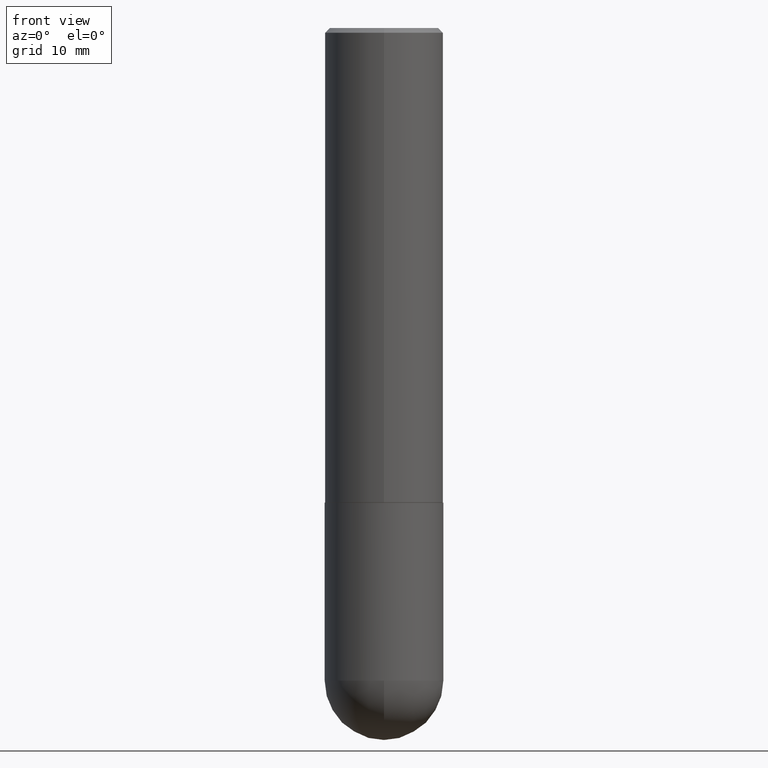
[diagram: clean part render]
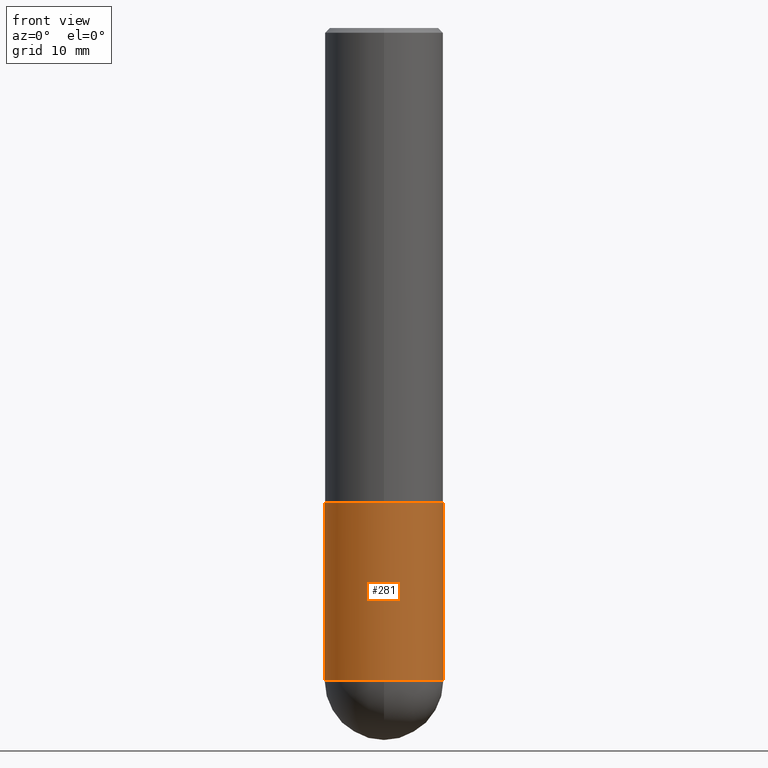
[diagram: same view with one face highlighted and labeled with its STEP entity id]
A machine part, front view. The second image highlights one B-rep face of the part: STEP entity #281.
In plain terms, the highlighted cylindrical surface (partial cylindrical patch) has radius 6.35 mm, axis along (-0, 0, 1).
Its self-contained STEP definition (entity closure, byte-faithful):
#16 = ORIENTED_EDGE ( 'NONE', *, *, #375, .F. ) ;
#37 = CARTESIAN_POINT ( 'NONE',  ( -1.776356839400184989E-15, -0.2500000000000098810, -2.749999999999999556 ) ) ;
#45 = VERTEX_POINT ( 'NONE', #253 ) ;
#57 = CARTESIAN_POINT ( 'NONE',  ( -0.2500000000000000000, -6.515911340352222809E-15, -2.750000000000000444 ) ) ;
#59 = ORIENTED_EDGE ( 'NONE', *, *, #106, .T. ) ;
#63 = VECTOR ( 'NONE', #221, 39.37007874015748143 ) ;
#66 = LINE ( 'NONE', #192, #63 ) ;
#74 = AXIS2_PLACEMENT_3D ( 'NONE', #95, #380, #128 ) ;
#76 = VERTEX_POINT ( 'NONE', #57 ) ;
#94 = CARTESIAN_POINT ( 'NONE',  ( 0.2500000000000000000, -1.003800884917404153E-14, -2.750000000000000444 ) ) ;
#95 = CARTESIAN_POINT ( 'NONE',  ( 6.725039217009125641E-29, -9.601573681818653015E-15, -2.750000000000000444 ) ) ;
#103 = DIRECTION ( 'NONE',  ( 1.000000000000000000, -6.982962677686266711E-15, 0.000000000000000000 ) ) ;
#104 = CIRCLE ( 'NONE', #74, 0.2500000000000000000 ) ;
#106 = EDGE_CURVE ( 'NONE', #173, #401, #66, .T. ) ;
#107 = DIRECTION ( 'NONE',  ( -2.445468806185136597E-29, 3.491481338843145583E-15, 1.000000000000000000 ) ) ;
#125 = FACE_OUTER_BOUND ( 'NONE', #307, .T. ) ;
#128 = DIRECTION ( 'NONE',  ( 1.000000000000000000, -6.982962677686270655E-15, 0.000000000000000000 ) ) ;
#130 = CARTESIAN_POINT ( 'NONE',  ( -0.2500000000000000000, 1.776356839400250465E-15, -1.229733772563726445E-29 ) ) ;
#147 = EDGE_CURVE ( 'NONE', #76, #45, #409, .T. ) ;
#153 = CIRCLE ( 'NONE', #286, 0.2500000000000000000 ) ;
#170 = VERTEX_POINT ( 'NONE', #37 ) ;
#173 = VERTEX_POINT ( 'NONE', #94 ) ;
#190 = AXIS2_PLACEMENT_3D ( 'NONE', #254, #378, #320 ) ;
#192 = CARTESIAN_POINT ( 'NONE',  ( 0.2500000000000000000, -1.745740669421566678E-15, 1.219044193948983948E-29 ) ) ;
#199 = DIRECTION ( 'NONE',  ( -2.445468806185136877E-29, 3.491481338843145188E-15, 1.000000000000000000 ) ) ;
#221 = DIRECTION ( 'NONE',  ( -2.445468806185136877E-29, 3.491481338843145188E-15, 1.000000000000000000 ) ) ;
#229 = CARTESIAN_POINT ( 'NONE',  ( 4.890937612370273754E-29, -6.982962677686291954E-15, -2.000000000000000444 ) ) ;
#237 = EDGE_CURVE ( 'NONE', #76, #170, #104, .T. ) ;
#253 = CARTESIAN_POINT ( 'NONE',  ( -0.2500000000000000000, -6.515911340352221231E-15, -2.000000000000000444 ) ) ;
#254 = CARTESIAN_POINT ( 'NONE',  ( 0.000000000000000000, 0.000000000000000000, 0.000000000000000000 ) ) ;
#264 = CARTESIAN_POINT ( 'NONE',  ( 6.725039217009125641E-29, -9.601573681818653015E-15, -2.750000000000000444 ) ) ;
#270 = ORIENTED_EDGE ( 'NONE', *, *, #147, .F. ) ;
#281 = ADVANCED_FACE ( 'NONE', ( #125 ), #292, .T. ) ;
#286 = AXIS2_PLACEMENT_3D ( 'NONE', #229, #107, #103 ) ;
#292 = CYLINDRICAL_SURFACE ( 'NONE', #190, 0.2500000000000000000 ) ;
#297 = DIRECTION ( 'NONE',  ( -2.445468806185136597E-29, 3.491481338843145583E-15, 1.000000000000000000 ) ) ;
#299 = EDGE_CURVE ( 'NONE', #170, #173, #399, .T. ) ;
#307 = EDGE_LOOP ( 'NONE', ( #270, #332, #355, #59, #16 ) ) ;
#320 = DIRECTION ( 'NONE',  ( 1.000000000000000000, -6.982962677686266711E-15, 4.876176775795935793E-29 ) ) ;
#332 = ORIENTED_EDGE ( 'NONE', *, *, #237, .T. ) ;
#335 = CARTESIAN_POINT ( 'NONE',  ( 0.2500000000000000000, -8.728703347107858632E-15, -2.000000000000000444 ) ) ;
#341 = AXIS2_PLACEMENT_3D ( 'NONE', #264, #297, #396 ) ;
#355 = ORIENTED_EDGE ( 'NONE', *, *, #299, .T. ) ;
#375 = EDGE_CURVE ( 'NONE', #45, #401, #153, .T. ) ;
#378 = DIRECTION ( 'NONE',  ( -2.445468806185136597E-29, 3.491481338843145583E-15, 1.000000000000000000 ) ) ;
#380 = DIRECTION ( 'NONE',  ( -2.445468806185136597E-29, 3.491481338843145583E-15, 1.000000000000000000 ) ) ;
#390 = VECTOR ( 'NONE', #199, 39.37007874015748143 ) ;
#396 = DIRECTION ( 'NONE',  ( 1.000000000000000000, -6.982962677686270655E-15, 0.000000000000000000 ) ) ;
#399 = CIRCLE ( 'NONE', #341, 0.2500000000000000000 ) ;
#401 = VERTEX_POINT ( 'NONE', #335 ) ;
#409 = LINE ( 'NONE', #130, #390 ) ;